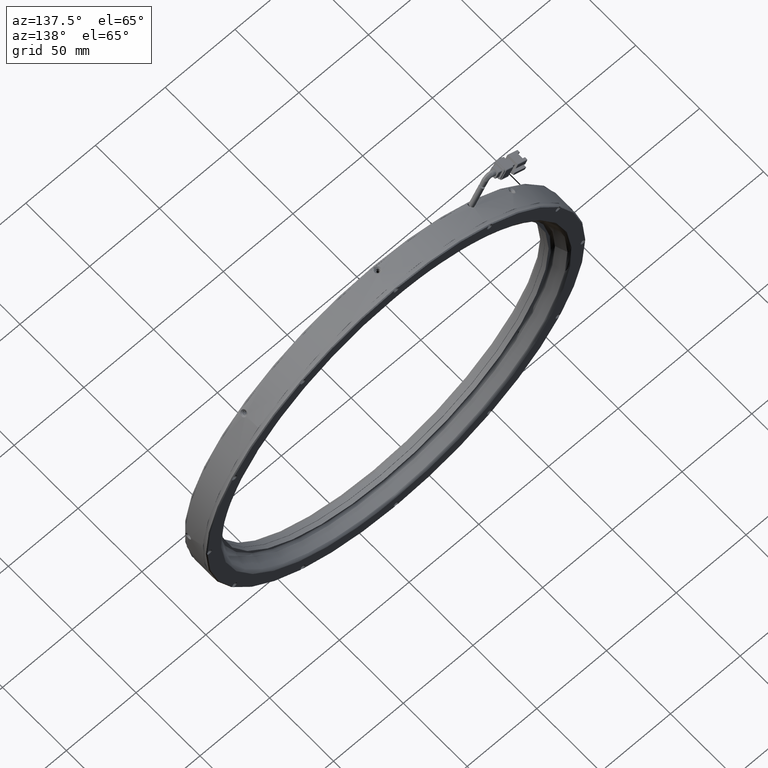
[diagram: clean part render]
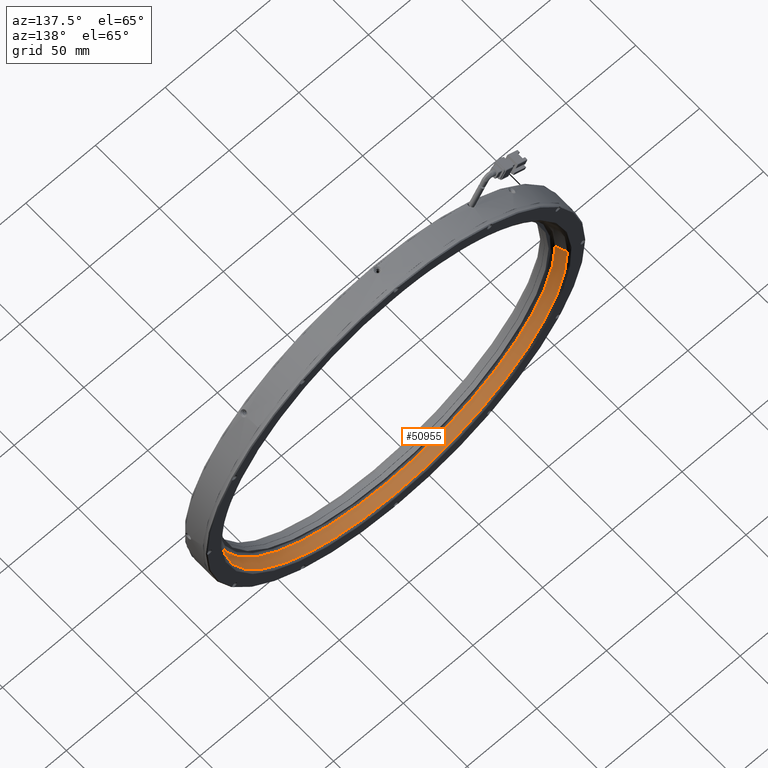
[diagram: same view with one face highlighted and labeled with its STEP entity id]
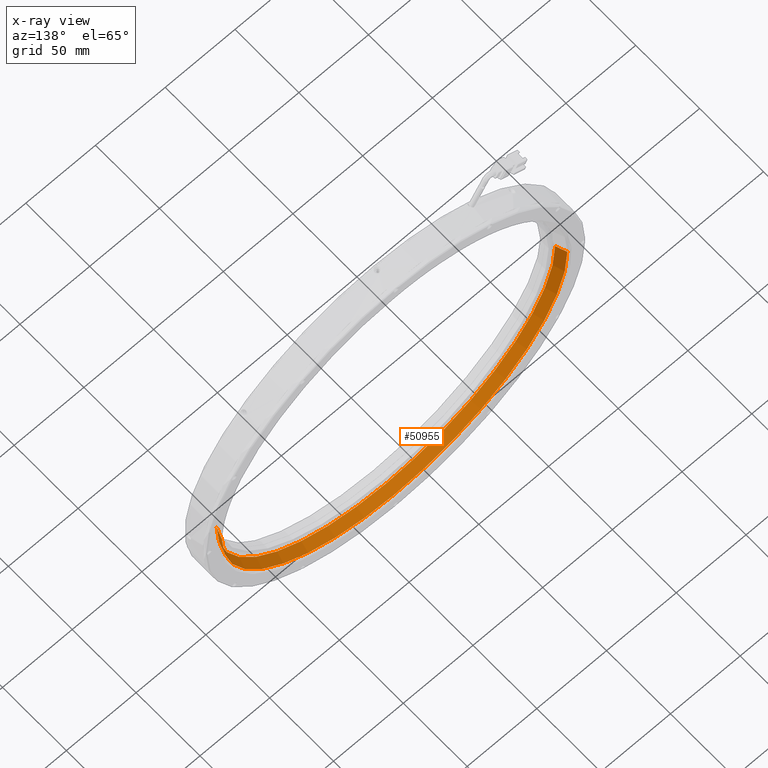
[diagram: x-ray of the same camera — body ghosted, the highlighted face saturated]
A machine part, auxiliary view. The second image highlights one B-rep face of the part: STEP entity #50955.
The next image is the same camera in x-ray: the body ghosted, the highlighted face saturated — about 0% of this face is hidden behind the body in this view.
In plain terms, the highlighted conical surface has half-angle 20 deg.
Its self-contained STEP definition (entity closure, byte-faithful):
#1483 = ORIENTED_EDGE ( 'NONE', *, *, #131933, .T. ) ;
#1779 = EDGE_CURVE ( 'NONE', #97120, #31714, #10542, .T. ) ;
#4110 = CONICAL_SURFACE ( 'NONE', #5798, 123.9268870712438800, 0.3490658503988742800 ) ;
#5798 = AXIS2_PLACEMENT_3D ( 'NONE', #99824, #47911, #48359 ) ;
#5972 = DIRECTION ( 'NONE',  ( 0.0000000000000000000, -1.714347029342173900E-016, 1.000000000000000000 ) ) ;
#10542 = CIRCLE ( 'NONE', #55468, 121.4263002497774600 ) ;
#12862 = AXIS2_PLACEMENT_3D ( 'NONE', #48236, #121096, #58688 ) ;
#14986 = DIRECTION ( 'NONE',  ( -0.3420201433256766000, 0.9396926207859055400, 0.0000000000000000000 ) ) ;
#15597 = CARTESIAN_POINT ( 'NONE',  ( -23.30300868215381600, 13.25624818171085700, -2.420481350073888600E-014 ) ) ;
#22825 = ORIENTED_EDGE ( 'NONE', *, *, #121949, .F. ) ;
#26058 = DIRECTION ( 'NONE',  ( 0.0000000000000000000, 0.0000000000000000000, -1.000000000000000000 ) ) ;
#26963 = DIRECTION ( 'NONE',  ( 0.0000000000000000000, -1.714347029342173900E-016, 1.000000000000000000 ) ) ;
#27453 = DIRECTION ( 'NONE',  ( 0.0000000000000000000, 1.000000000000000000, 0.0000000000000000000 ) ) ;
#27737 = CARTESIAN_POINT ( 'NONE',  ( -23.30300868215381600, 6.385942354346138200, -2.420481350073888600E-014 ) ) ;
#28008 = CARTESIAN_POINT ( 'NONE',  ( 100.6238783890900800, 13.25624818171081100, -9.028146942729452000E-015 ) ) ;
#31433 = VERTEX_POINT ( 'NONE', #134318 ) ;
#31714 = VERTEX_POINT ( 'NONE', #121015 ) ;
#33891 = VERTEX_POINT ( 'NONE', #123160 ) ;
#36279 = CIRCLE ( 'NONE', #12862, 123.9268870712439000 ) ;
#38491 = DIRECTION ( 'NONE',  ( 0.3420201433256766000, 0.9396926207859055400, 4.188538737677088500E-017 ) ) ;
#44313 = CIRCLE ( 'NONE', #130356, 123.9268870712439000 ) ;
#45457 = CARTESIAN_POINT ( 'NONE',  ( 100.6238783890900900, 13.25624818171085700, -9.028146942729448800E-015 ) ) ;
#47911 = DIRECTION ( 'NONE',  ( 2.799591786695227700E-017, 1.000000000000000000, 0.0000000000000000000 ) ) ;
#48236 = CARTESIAN_POINT ( 'NONE',  ( -23.30300868215381600, 13.25624818171085700, -2.420481350073888600E-014 ) ) ;
#48359 = DIRECTION ( 'NONE',  ( -1.000000000000000000, 2.799591786695228300E-017, 0.0000000000000000000 ) ) ;
#50955 = ADVANCED_FACE ( 'NONE', ( #72580 ), #4110, .F. ) ;
#51585 = EDGE_LOOP ( 'NONE', ( #74093, #1483, #22825, #55879, #53051, #90631 ) ) ;
#53051 = ORIENTED_EDGE ( 'NONE', *, *, #124123, .F. ) ;
#55325 = AXIS2_PLACEMENT_3D ( 'NONE', #130881, #68370, #5972 ) ;
#55468 = AXIS2_PLACEMENT_3D ( 'NONE', #27737, #27453, #26963 ) ;
#55879 = ORIENTED_EDGE ( 'NONE', *, *, #76942, .F. ) ;
#56587 = VECTOR ( 'NONE', #38491, 1000.000000000000000 ) ;
#58688 = DIRECTION ( 'NONE',  ( 0.0000000000000000000, 0.0000000000000000000, -1.000000000000000000 ) ) ;
#65217 = CARTESIAN_POINT ( 'NONE',  ( -147.2298957533977000, 13.25624818171085700, -2.420481350073888600E-014 ) ) ;
#66282 = CIRCLE ( 'NONE', #55325, 121.4263002497774600 ) ;
#67254 = LINE ( 'NONE', #76811, #94988 ) ;
#68370 = DIRECTION ( 'NONE',  ( 0.0000000000000000000, 1.000000000000000000, 0.0000000000000000000 ) ) ;
#72580 = FACE_OUTER_BOUND ( 'NONE', #51585, .T. ) ;
#74093 = ORIENTED_EDGE ( 'NONE', *, *, #80070, .F. ) ;
#76811 = CARTESIAN_POINT ( 'NONE',  ( -147.2298957533977000, 13.25624818171081800, -2.420481350073888600E-014 ) ) ;
#76942 = EDGE_CURVE ( 'NONE', #121906, #31433, #36279, .T. ) ;
#80070 = EDGE_CURVE ( 'NONE', #33891, #97120, #66282, .T. ) ;
#85459 = CARTESIAN_POINT ( 'NONE',  ( -23.30300868215381600, 6.385942354346148000, -121.4263002497774800 ) ) ;
#88388 = DIRECTION ( 'NONE',  ( -0.0000000000000000000, -1.000000000000000000, -0.0000000000000000000 ) ) ;
#90631 = ORIENTED_EDGE ( 'NONE', *, *, #1779, .F. ) ;
#94988 = VECTOR ( 'NONE', #14986, 1000.000000000000000 ) ;
#97120 = VERTEX_POINT ( 'NONE', #85459 ) ;
#99824 = CARTESIAN_POINT ( 'NONE',  ( -23.30300868215381600, 13.25624818171081500, -2.420481350073888600E-014 ) ) ;
#111970 = LINE ( 'NONE', #28008, #56587 ) ;
#121015 = CARTESIAN_POINT ( 'NONE',  ( -144.7293089319312900, 6.385942354346138200, -2.420481350073888600E-014 ) ) ;
#121096 = DIRECTION ( 'NONE',  ( -0.0000000000000000000, -1.000000000000000000, -0.0000000000000000000 ) ) ;
#121906 = VERTEX_POINT ( 'NONE', #65217 ) ;
#121949 = EDGE_CURVE ( 'NONE', #31433, #124630, #44313, .T. ) ;
#123160 = CARTESIAN_POINT ( 'NONE',  ( 98.12329156762362500, 6.385942354346138200, -9.181263725074394800E-015 ) ) ;
#124123 = EDGE_CURVE ( 'NONE', #31714, #121906, #67254, .T. ) ;
#124630 = VERTEX_POINT ( 'NONE', #45457 ) ;
#130356 = AXIS2_PLACEMENT_3D ( 'NONE', #15597, #88388, #26058 ) ;
#130881 = CARTESIAN_POINT ( 'NONE',  ( -23.30300868215381600, 6.385942354346138200, -2.420481350073888600E-014 ) ) ;
#131933 = EDGE_CURVE ( 'NONE', #33891, #124630, #111970, .T. ) ;
#134318 = CARTESIAN_POINT ( 'NONE',  ( -23.30300868215381600, 13.25624818171085700, -123.9268870712439300 ) ) ;